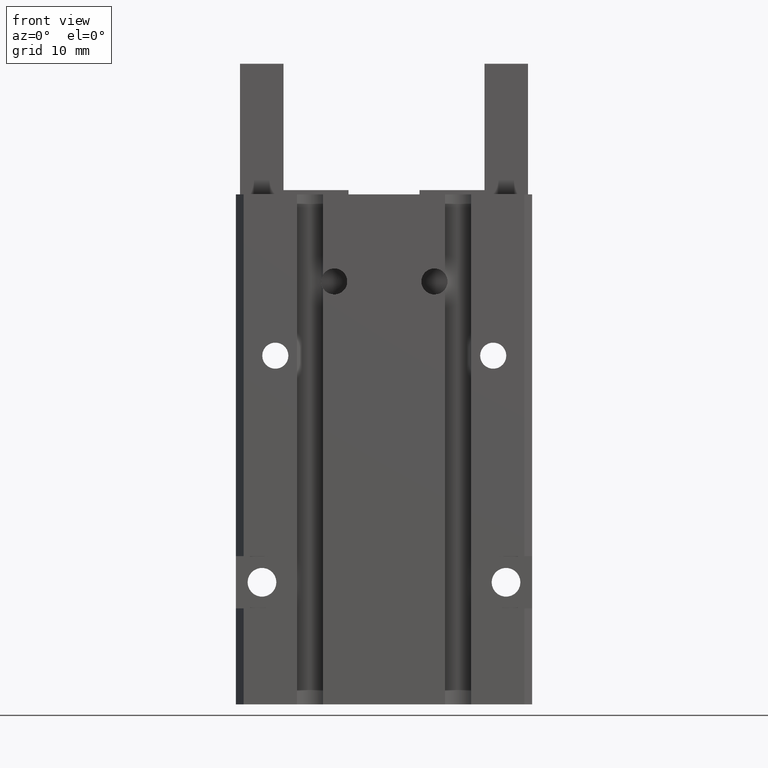
[diagram: clean part render]
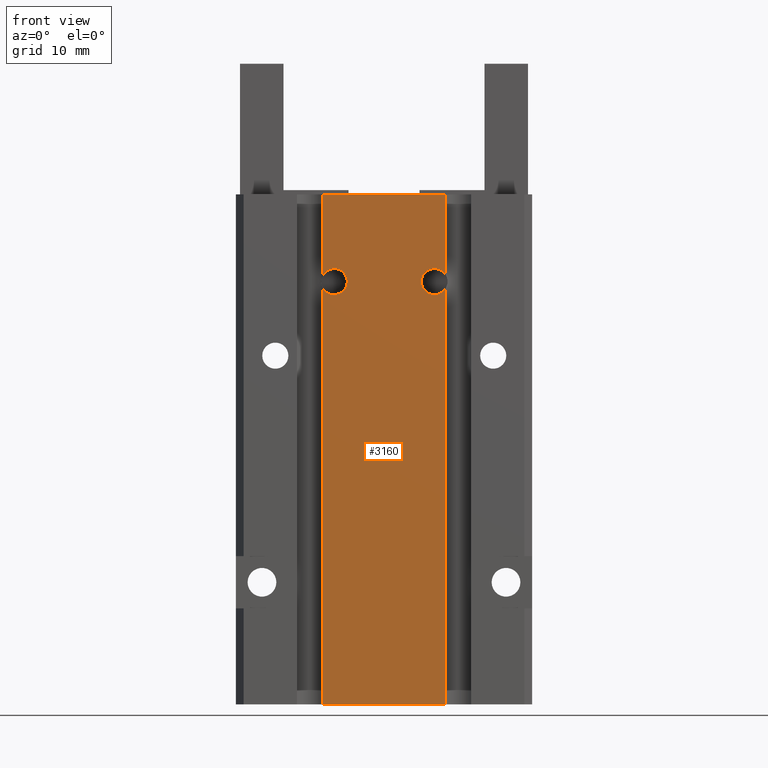
[diagram: same view with one face highlighted and labeled with its STEP entity id]
A machine part, front view. The second image highlights one B-rep face of the part: STEP entity #3160.
In plain terms, the highlighted planar face has unit normal (-0, -1, -0).
Its self-contained STEP definition (entity closure, byte-faithful):
#1604=CARTESIAN_POINT('',(6.96910338901669,-11.0308966109835,49.3739490413565)
);
#1605=VERTEX_POINT('Vertex80',#1604);
#1613=CARTESIAN_POINT('',(6.96910338901669,-11.0308966109835,58.5));
#1614=VERTEX_POINT('Vertex81',#1613);
#1621=CARTESIAN_POINT('',(6.96910338901669,-11.0308966109835,53.9369745206783)
);
#1622=DIRECTION('',(0.,1.75182142057408E-015,1.));
#1623=VECTOR('',#1622,1.);
#1624=LINE('nurbsCrv105',#1621,#1623);
#1625=EDGE_CURVE('Edge105',#1605,#1614,#1624,.T.);
#1756=CARTESIAN_POINT('',(-7.03089661098331,-11.0308966109835,49.2805791900707)
);
#1757=VERTEX_POINT('Vertex90',#1756);
#1764=CARTESIAN_POINT('',(-7.03089661098331,-11.0308966109834,58.5));
#1765=VERTEX_POINT('Vertex91',#1764);
#1766=CARTESIAN_POINT('',(-7.03089661098331,-11.0308966109835,53.8902895950354)
);
#1767=DIRECTION('',(1.92675535266502E-016,-6.55096819906108E-015,-1.));
#1768=VECTOR('',#1767,1.);
#1769=LINE('nurbsCrv117',#1766,#1768);
#1770=EDGE_CURVE('Edge117',#1765,#1757,#1769,.T.);
#1881=CARTESIAN_POINT('',(-7.0308966109833,-11.0308966109835,47.7194208099293)
);
#1882=VERTEX_POINT('Vertex92',#1881);
#1889=CARTESIAN_POINT('',(-5.75000000000001,-11.0308966109835,48.5));
#1890=DIRECTION('',(1.3269687601729E-015,1.,1.55627951928114E-015));
#1891=DIRECTION('',(-0.853931073988865,-1.1842378929335E-015,0.520386126713831)
);
#1892=AXIS2_PLACEMENT_3D('',#1889,#1890,#1891);
#1893=CIRCLE('nurbsCrv120',#1892,1.5);
#1894=EDGE_CURVE('Edge120',#1757,#1882,#1893,.T.);
#1957=CARTESIAN_POINT('',(6.9691033890167,-11.0308966109835,47.6260509586435));
#1958=VERTEX_POINT('Vertex100',#1957);
#1959=CARTESIAN_POINT('',(4.24999999999999,-11.0308966109835,48.5));
#1960=VERTEX_POINT('Vertex335',#1959);
#1961=CARTESIAN_POINT('',(5.74999999999998,-11.0308966109835,48.5));
#1962=DIRECTION('',(7.13010837948554E-016,1.,7.95259746023055E-016));
#1963=DIRECTION('',(0.812735592677807,2.36847578586699E-015,-0.582632694237676)
);
#1964=AXIS2_PLACEMENT_3D('',#1961,#1962,#1963);
#1965=CIRCLE('nurbsCrv772',#1964,1.49999999999999);
#1966=EDGE_CURVE('Edge486',#1958,#1960,#1965,.T.);
#2088=CARTESIAN_POINT('',(5.74999999999999,-11.0308966109835,48.5));
#2089=DIRECTION('',(7.13010837948553E-016,1.,-7.95259746023059E-016));
#2090=DIRECTION('',(-1.,0.,4.736951571734E-015));
#2091=AXIS2_PLACEMENT_3D('',#2088,#2089,#2090);
#2092=CIRCLE('nurbsCrv773',#2091,1.50000000000001);
#2093=EDGE_CURVE('Edge487',#1960,#1605,#2092,.T.);
#2908=CARTESIAN_POINT('',(-0.030896610983306,-11.0308966109835,58.5));
#2909=DIRECTION('',(-1.,3.42583104741477E-015,0.));
#2910=VECTOR('',#2909,1.);
#2911=LINE('nurbsCrv198',#2908,#2910);
#2912=EDGE_CURVE('Edge198',#1614,#1765,#2911,.T.);
#3125=ORIENTED_EDGE('Edgeuse377',*,*,#1625,.T.);
#3126=ORIENTED_EDGE('Edgeuse378',*,*,#2912,.T.);
#3127=ORIENTED_EDGE('Edgeuse379',*,*,#1770,.T.);
#3128=ORIENTED_EDGE('Edgeuse380',*,*,#1894,.T.);
#3129=CARTESIAN_POINT('',(-7.03089661098347,-11.0308966109836,
-2.4296095914569E-015));
#3130=VERTEX_POINT('Vertex169',#3129);
#3131=CARTESIAN_POINT('',(-7.03089661098339,-11.0308966109836,23.8597104049646)
);
#3132=DIRECTION('',(-3.51776527196229E-015,-2.68020211197127E-015,-1.));
#3133=VECTOR('',#3132,1.);
#3134=LINE('nurbsCrv221',#3131,#3133);
#3135=EDGE_CURVE('Edge221',#1882,#3130,#3134,.T.);
#3136=ORIENTED_EDGE('Edgeuse381',*,*,#3135,.T.);
#3137=CARTESIAN_POINT('',(6.96910338901653,-11.0308966109833,
1.42063751570139E-016));
#3138=VERTEX_POINT('Vertex170',#3137);
#3139=CARTESIAN_POINT('',(-0.0308966109834721,-11.0308966109835,
-1.14377291994338E-015));
#3140=DIRECTION('',(-1.,-2.03012210217171E-014,-1.8369095307336E-016));
#3141=VECTOR('',#3140,1.);
#3142=LINE('nurbsCrv222',#3139,#3141);
#3143=EDGE_CURVE('Edge222',#3138,#3130,#3142,.T.);
#3144=ORIENTED_EDGE('Edgeuse382',*,*,#3143,.F.);
#3145=CARTESIAN_POINT('',(6.96910338901661,-11.0308966109834,23.8130254793217)
);
#3146=DIRECTION('',(3.52466177531896E-015,-3.35682073839901E-015,1.));
#3147=VECTOR('',#3146,1.);
#3148=LINE('nurbsCrv223',#3145,#3147);
#3149=EDGE_CURVE('Edge223',#3138,#1958,#3148,.T.);
#3150=ORIENTED_EDGE('Edgeuse383',*,*,#3149,.T.);
#3151=ORIENTED_EDGE('Edgeuse972',*,*,#1966,.T.);
#3152=ORIENTED_EDGE('Edgeuse974',*,*,#2093,.T.);
#3153=EDGE_LOOP('',(#3125,#3126,#3127,#3128,#3136,#3144,#3150,#3151,#3152));
#3154=FACE_OUTER_BOUND('',#3153,.T.);
#3155=CARTESIAN_POINT('',(-0.0308966109833868,-11.0308966109835,29.25));
#3156=DIRECTION('',(-3.34508755471467E-015,-1.,-1.38023064444475E-016));
#3157=DIRECTION('',(1.,-3.34508755471467E-015,3.34508755471467E-015));
#3158=AXIS2_PLACEMENT_3D('',#3155,#3156,#3157);
#3159=PLANE('nurbsSrf71',#3158);
#3160=ADVANCED_FACE('Face71',(#3154),#3159,.T.);